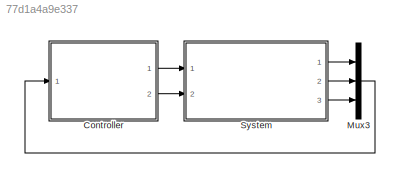
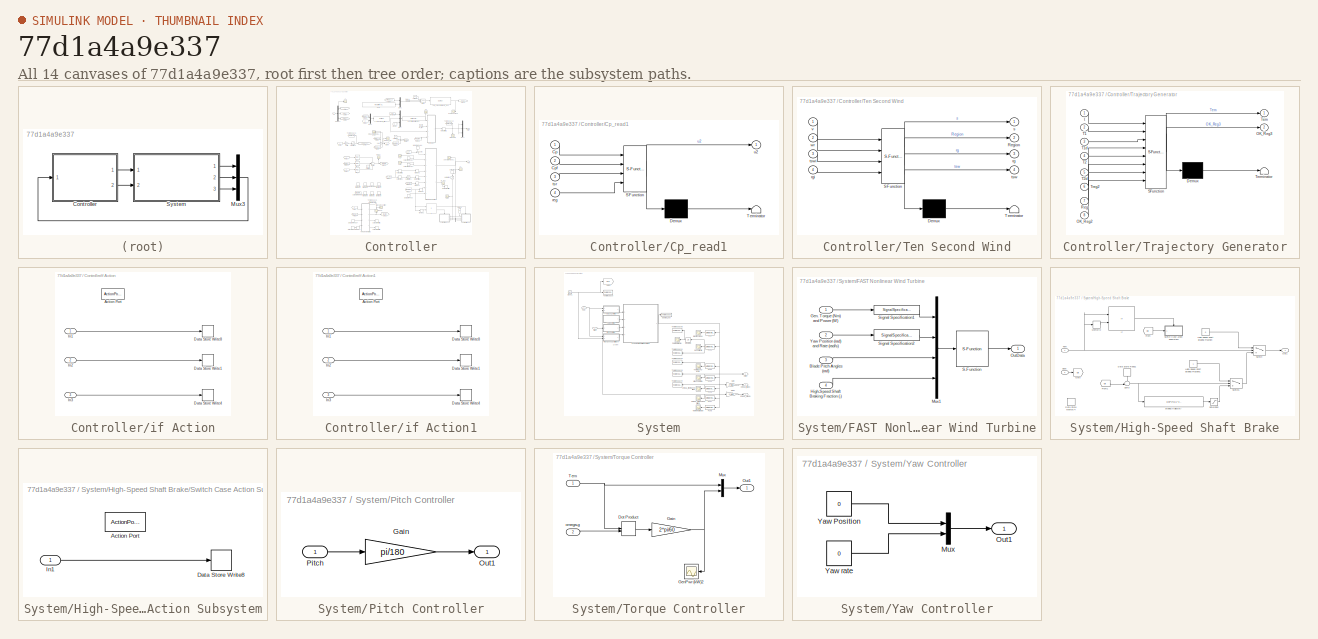
[diagram: thumbnail index - all 14 canvases of the model, root first then tree order]
MODEL slx_77d1a4a9e337
KIND model
CONFIG AbsTol = auto
CONFIG FixedStep = 0.01
CONFIG MaxStep = DT
CONFIG MinStep = auto
CONFIG RelTol = 1e-3
CONFIG SampleTimeConstraint = Unconstrained
CONFIG Solver = VariableStepAuto
CONFIG SolverMode = Auto
CONFIG SolverName = VariableStepAuto
CONFIG StartTime = 0.0
CONFIG StopTime = 101
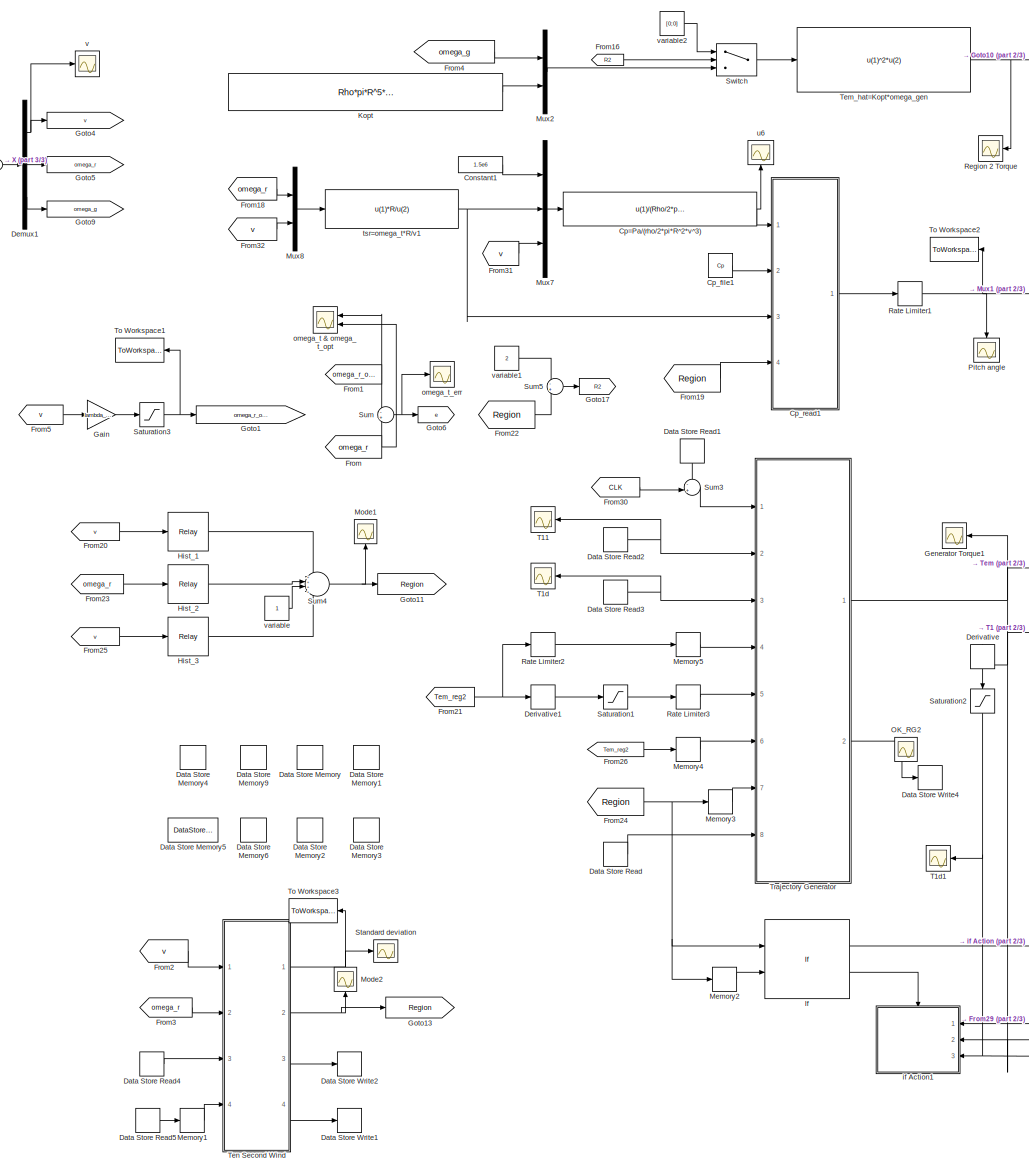
[diagram: Controller - part 1/3, most of the canvas]
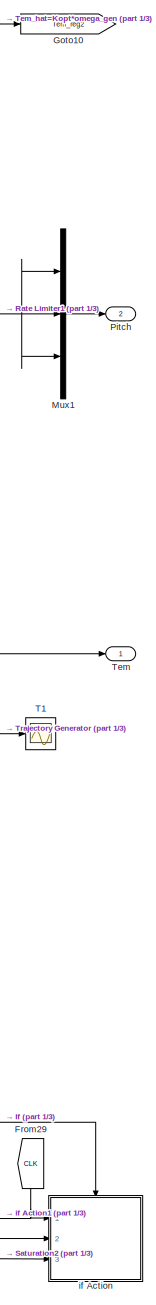
[diagram: Controller - part 2/3, right side, full height]
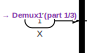
[diagram: Controller - part 3/3, top left region]
BLOCK [SubSystem] Controller
  Ports = [1, 2]
  RequestExecContextInheritance = off
  Variant = off
BLOCK [Constant] Controller/Constant1
  Value = 1.5e6
BLOCK [Fcn] Controller/Cp=Pa//(rho//2*pi*R^2*v^3)
  Expr = u(1)/(Rho/2*pi*R^2*u(3)^3)
BLOCK [Constant] Controller/Cp_file1
  Value = Cp
BLOCK [SubSystem] Controller/Cp_read1
  ErrorFcn = Stateflow.Translate.translate
  PermitHierarchicalResolution = ExplicitOnly
  Ports = [4, 1]
  RequestExecContextInheritance = off
  SFBlockType = MATLAB Function
  TreatAsAtomicUnit = on
  Variant = off
BLOCK [Demux] Controller/Cp_read1/ Demux 
  Outputs = 1
  Ports = [1, 1]
BLOCK [S-Function] Controller/Cp_read1/ SFunction 
  EnableBusSupport = on
  FunctionName = sf_sfun
  PortCounts = [4 2]
  Ports = [4, 2]
  SFunctionDeploymentMode = off
  Tag = Stateflow S-Function Closedloop 2
BLOCK [Terminator] Controller/Cp_read1/ Terminator 
BLOCK [Inport] Controller/Cp_read1/Cp
  IconDisplay = Port number
BLOCK [Inport] Controller/Cp_read1/Cpf
  IconDisplay = Port number
  Port = 2
BLOCK [Inport] Controller/Cp_read1/reg
  IconDisplay = Port number
  Port = 4
BLOCK [Inport] Controller/Cp_read1/tsr
  IconDisplay = Port number
  Port = 3
BLOCK [Outport] Controller/Cp_read1/u2
  IconDisplay = Port number
BLOCK [DataStoreMemory] Controller/Data Store Memory
  DataStoreName = T1
BLOCK [DataStoreMemory] Controller/Data Store Memory1
  DataStoreName = Rg2
  InitialValue = 1
BLOCK [DataStoreMemory] Controller/Data Store Memory2
  DataStoreName = T2
BLOCK [DataStoreMemory] Controller/Data Store Memory3
  DataStoreName = T2d
BLOCK [DataStoreMemory] Controller/Data Store Memory4
  DataStoreName = Clk
BLOCK [DataStoreMemory] Controller/Data Store Memory5
  DataStoreName = TSW
  InitialValue = zeros(1,500)
BLOCK [DataStoreMemory] Controller/Data Store Memory6
  DataStoreName = RG
  InitialValue = [0 0 0]
  OutDataTypeStr = double
BLOCK [DataStoreMemory] Controller/Data Store Memory9
  DataStoreName = T1d
BLOCK [DataStoreRead] Controller/Data Store Read
  DataStoreName = Rg2
  Ports = [0, 1]
  SampleTime = 0
BLOCK [DataStoreRead] Controller/Data Store Read1
  DataStoreName = Clk
  Ports = [0, 1]
  SampleTime = 0
BLOCK [DataStoreRead] Controller/Data Store Read2
  DataStoreName = T1
  Ports = [0, 1]
  SampleTime = 0
BLOCK [DataStoreRead] Controller/Data Store Read3
  DataStoreName = T1d
  Ports = [0, 1]
  SampleTime = 0
BLOCK [DataStoreRead] Controller/Data Store Read4
  DataStoreName = TSW
  Ports = [0, 1]
BLOCK [DataStoreRead] Controller/Data Store Read5
  DataStoreName = RG
  Ports = [0, 1]
BLOCK [DataStoreWrite] Controller/Data Store Write1
  DataStoreName = TSW
  Ports = [1]
BLOCK [DataStoreWrite] Controller/Data Store Write2
  Commented = on
  DataStoreName = RG
  Ports = [1]
BLOCK [DataStoreWrite] Controller/Data Store Write4
  DataStoreName = Rg2
  Ports = [1]
BLOCK [Demux] Controller/Demux1
  DisplayOption = bar
  Outputs = 3
  Ports = [1, 3]
BLOCK [Derivative] Controller/Derivative
  CoefficientInTFapproximation = 10
BLOCK [Derivative] Controller/Derivative1
  CoefficientInTFapproximation = 50
BLOCK [From] Controller/From
  GotoTag = omega_r
BLOCK [From] Controller/From1
  GotoTag = omega_r_opt
BLOCK [From] Controller/From16
  GotoTag = R2
BLOCK [From] Controller/From18
  GotoTag = omega_r
BLOCK [From] Controller/From19
  GotoTag = Region
BLOCK [From] Controller/From2
  GotoTag = v
BLOCK [From] Controller/From20
  GotoTag = v
BLOCK [From] Controller/From21
  GotoTag = Tem_reg2
BLOCK [From] Controller/From22
  GotoTag = Region
BLOCK [From] Controller/From23
  GotoTag = omega_r
BLOCK [From] Controller/From24
  GotoTag = Region
BLOCK [From] Controller/From25
  GotoTag = v
BLOCK [From] Controller/From26
  GotoTag = Tem_reg2
BLOCK [From] Controller/From29
  GotoTag = CLK
  TagVisibility = global
BLOCK [From] Controller/From3
  GotoTag = omega_r
BLOCK [From] Controller/From30
  GotoTag = CLK
  TagVisibility = global
BLOCK [From] Controller/From31
  GotoTag = v
BLOCK [From] Controller/From32
  GotoTag = v
BLOCK [From] Controller/From4
  GotoTag = omega_g
BLOCK [From] Controller/From5
  GotoTag = v
BLOCK [Gain] Controller/Gain
  Gain = lambda_opt/R*60/2/pi
  OutDataTypeStr = Inherit: Inherit via internal rule
  ParamDataTypeStr = Inherit: Inherit via internal rule
  SaturateOnIntegerOverflow = off
BLOCK [Scope] Controller/Generator Torque1
  Ports = [1]
  ScopeSpecificationString = Simulink.scopes.TimeScopeBlockCfg('CurrentConfiguration', extmgr.ConfigurationSet(extmgr.Configuration('Core','General UI',true,'FigureColor',[1 1 1]),extmgr.Configuration('Core','Source UI',true),extmgr.Configuration('Sources','WiredSimulink',true,'DataLoggingSaveFormat','StructureWithTime','DataLoggingDecimation','1','DataLoggingDecimateData',true,'DataLoggingVariableName','ScopeData1'),extmgr.C...<+2225ch>
BLOCK [Goto] Controller/Goto1
  GotoTag = omega_r_opt
BLOCK [Goto] Controller/Goto10
  GotoTag = Tem_reg2
BLOCK [Goto] Controller/Goto11
  GotoTag = Region
BLOCK [Goto] Controller/Goto13
  Commented = on
  GotoTag = Region
BLOCK [Goto] Controller/Goto17
  GotoTag = R2
BLOCK [Goto] Controller/Goto4
  GotoTag = v
BLOCK [Goto] Controller/Goto5
  GotoTag = omega_r
BLOCK [Goto] Controller/Goto6
  GotoTag = e
BLOCK [Goto] Controller/Goto9
  GotoTag = omega_g
BLOCK [Relay] Controller/Hist_1
  InputProcessing = Elements as channels (sample based)
  OffSwitchValue = 2.9
  OnSwitchValue = 3.3
BLOCK [Relay] Controller/Hist_2
  InputProcessing = Elements as channels (sample based)
  OffSwitchValue = 1.8
  OnSwitchValue = 1.9
BLOCK [Relay] Controller/Hist_3
  InputProcessing = Elements as channels (sample based)
  OffSwitchValue = 24.8
  OnSwitchValue = 25
BLOCK [If] Controller/If
  ElseIfExpressions = (u1==2)
  IfExpression = (u1~=u2)
  NumInputs = 2
  Ports = [2, 2]
  ShowElse = off
BLOCK [Constant] Controller/Kopt 
  Value = Rho*pi*R^5*Cp_opt/(2*ng^3*lambda_opt^3)
BLOCK [Memory] Controller/Memory1
BLOCK [Memory] Controller/Memory2
BLOCK [Memory] Controller/Memory3
  X0 = 2
BLOCK [Memory] Controller/Memory4
BLOCK [Memory] Controller/Memory5
BLOCK [Scope] Controller/Mode1
  Ports = [1]
  ScopeSpecificationString = Simulink.scopes.TimeScopeBlockCfg('CurrentConfiguration', extmgr.ConfigurationSet(extmgr.Configuration('Core','General UI',true),extmgr.Configuration('Core','Source UI',true),extmgr.Configuration('Sources','WiredSimulink',true,'DataLoggingVariableName','ScopeData2','DataLoggingSaveFormat','Array','DataLoggingDecimation','1','DataLoggingDecimateData',true),extmgr.Configuration('Visuals','Time Domai...<+1776ch>
BLOCK [Scope] Controller/Mode2
  Commented = on
  Ports = [1]
  ScopeSpecificationString = Simulink.scopes.TimeScopeBlockCfg('CurrentConfiguration', extmgr.ConfigurationSet(extmgr.Configuration('Core','General UI',true),extmgr.Configuration('Core','Source UI',true),extmgr.Configuration('Sources','WiredSimulink',true,'DataLoggingVariableName','ScopeData1'),extmgr.Configuration('Visuals','Time Domain',true,'SerializedDisplays',{struct('MinYLimReal','1.00000','MaxYLimReal','3.00000','YLabe...<+1404ch>
BLOCK [Mux] Controller/Mux1
  DisplayOption = bar
  Inputs = 3
  Ports = [3, 1]
BLOCK [Mux] Controller/Mux2
  DisplayOption = bar
  Inputs = 2
  Ports = [2, 1]
BLOCK [Mux] Controller/Mux7
  DisplayOption = bar
  Inputs = 3
  Ports = [3, 1]
BLOCK [Mux] Controller/Mux8
  DisplayOption = bar
  Inputs = 2
  Ports = [2, 1]
BLOCK [Scope] Controller/OK_RG2
  Ports = [1]
  ScopeSpecificationString = Simulink.scopes.TimeScopeBlockCfg('CurrentConfiguration', extmgr.ConfigurationSet(extmgr.Configuration('Core','General UI',true),extmgr.Configuration('Core','Source UI',true),extmgr.Configuration('Sources','WiredSimulink',true,'DataLoggingVariableName','ScopeData3','DataLoggingSaveFormat','Array','DataLoggingDecimation','1','DataLoggingDecimateData',true),extmgr.Configuration('Visuals','Time Domai...<+1735ch>
BLOCK [Outport] Controller/Pitch
  IconDisplay = Port number
  Port = 2
BLOCK [Scope] Controller/Pitch angle
  Ports = [1]
  ScopeSpecificationString = Simulink.scopes.TimeScopeBlockCfg('CurrentConfiguration', extmgr.ConfigurationSet(extmgr.Configuration('Core','General UI',true),extmgr.Configuration('Core','Source UI',true),extmgr.Configuration('Sources','WiredSimulink',true,'DataLoggingVariableName','ScopeData4','DataLoggingSaveFormat','Array','DataLoggingDecimation','1','DataLoggingDecimateData',true),extmgr.Configuration('Visuals','Time Domai...<+1521ch>
BLOCK [RateLimiter] Controller/Rate Limiter1
  FallingSlewLimit = -5
  RisingSlewLimit = 5
  SampleTimeMode = inherited
BLOCK [RateLimiter] Controller/Rate Limiter2
  FallingSlewLimit = -50
  RisingSlewLimit = 50
  SampleTimeMode = inherited
BLOCK [RateLimiter] Controller/Rate Limiter3
  FallingSlewLimit = -50
  RisingSlewLimit = 50
  SampleTimeMode = inherited
BLOCK [Scope] Controller/Region 2 Torque
  Ports = [1]
  ScopeSpecificationString = Simulink.scopes.TimeScopeBlockCfg('CurrentConfiguration', extmgr.ConfigurationSet(extmgr.Configuration('Core','General UI',true,'FigureColor',[1 1 1]),extmgr.Configuration('Core','Source UI',true),extmgr.Configuration('Sources','WiredSimulink',true,'DataLoggingSaveFormat','StructureWithTime','DataLoggingDecimation','1','DataLoggingDecimateData',true,'DataLoggingVariableName','ScopeData11'),extmgr....<+1876ch>
BLOCK [Saturate] Controller/Saturation1
  InputPortMap = u0
  LinearizeAsGain = off
  LowerLimit = -1000
  Ports = [1, 1]
  UpperLimit = 1000
  ZeroCross = off
BLOCK [Saturate] Controller/Saturation2
  InputPortMap = u0
  LowerLimit = -500
  Ports = [1, 1]
  UpperLimit = 500
  ZeroCross = off
BLOCK [Saturate] Controller/Saturation3
  InputPortMap = u0
  LowerLimit = 0
  Ports = [1, 1]
  UpperLimit = 20.5
  ZeroCross = off
BLOCK [Scope] Controller/Standard deviation
  Ports = [1]
  ScopeSpecificationString = Simulink.scopes.TimeScopeBlockCfg('CurrentConfiguration', extmgr.ConfigurationSet(extmgr.Configuration('Core','General UI',true),extmgr.Configuration('Core','Source UI',true),extmgr.Configuration('Sources','WiredSimulink',true,'DataLoggingVariableName','ScopeData2'),extmgr.Configuration('Visuals','Time Domain',true,'SerializedDisplays',{struct('MinYLimReal','-0.68215','MaxYLimReal','6.26857','YLab...<+1724ch>
BLOCK [Sum] Controller/Sum
  IconShape = round
  InputSameDT = off
  Inputs = -+
  OutDataTypeStr = Inherit: Inherit via internal rule
  Ports = [2, 1]
  SaturateOnIntegerOverflow = off
BLOCK [Sum] Controller/Sum3
  IconShape = round
  InputSameDT = off
  Inputs = -+|
  OutDataTypeStr = Inherit: Inherit via internal rule
  Ports = [2, 1]
  SaturateOnIntegerOverflow = off
BLOCK [Sum] Controller/Sum4
  IconShape = round
  InputSameDT = off
  Inputs = ++++
  OutDataTypeStr = Inherit: Inherit via internal rule
  Ports = [4, 1]
  SaturateOnIntegerOverflow = off
BLOCK [Sum] Controller/Sum5
  IconShape = round
  InputSameDT = off
  Inputs = -+
  OutDataTypeStr = Inherit: Inherit via internal rule
  Ports = [2, 1]
  SaturateOnIntegerOverflow = off
BLOCK [Switch] Controller/Switch
  Criteria = u2 ~= 0
  InputSameDT = off
  SaturateOnIntegerOverflow = off
  Threshold = 2
BLOCK [Scope] Controller/T1
  Ports = [1]
  ScopeSpecificationString = C++SS(StrPVP('SaveName','ScopeData5'),StrPVP('LimitDataPoints','on'),StrPVP('DataFormat','Array'),StrPVP('Decimation','1'),StrPVP('BlockParamSampleInput','off'))
BLOCK [Scope] Controller/T11
  Ports = [1]
  ScopeSpecificationString = C++SS(StrPVP('SaveName','ScopeData6'),StrPVP('LimitDataPoints','on'),StrPVP('DataFormat','Array'),StrPVP('Decimation','1'),StrPVP('BlockParamSampleInput','off'))
BLOCK [Scope] Controller/T1d
  Ports = [1]
  ScopeSpecificationString = C++SS(StrPVP('SaveName','ScopeData7'),StrPVP('LimitDataPoints','on'),StrPVP('DataFormat','Array'),StrPVP('Decimation','1'),StrPVP('BlockParamSampleInput','off'))
BLOCK [Scope] Controller/T1d1
  Ports = [1]
  ScopeSpecificationString = C++SS(StrPVP('SaveName','ScopeData8'),StrPVP('LimitDataPoints','on'),StrPVP('DataFormat','Array'),StrPVP('Decimation','1'),StrPVP('BlockParamSampleInput','off'))
BLOCK [Outport] Controller/Tem 
  IconDisplay = Port number
BLOCK [Fcn] Controller/Tem_hat=Kopt*omega_gen
  Expr = u(1)^2*u(2)
BLOCK [SubSystem] Controller/Ten Second Wind
  ErrorFcn = Stateflow.Translate.translate
  PermitHierarchicalResolution = ExplicitOnly
  Ports = [4, 4]
  RequestExecContextInheritance = off
  SFBlockType = MATLAB Function
  TreatAsAtomicUnit = on
  Variant = off
BLOCK [Demux] Controller/Ten Second Wind/ Demux 
  Outputs = 1
  Ports = [1, 1]
BLOCK [S-Function] Controller/Ten Second Wind/ SFunction 
  EnableBusSupport = on
  FunctionName = sf_sfun
  PortCounts = [4 5]
  Ports = [4, 5]
  SFunctionDeploymentMode = off
  Tag = Stateflow S-Function Closedloop 3
BLOCK [Terminator] Controller/Ten Second Wind/ Terminator 
BLOCK [Outport] Controller/Ten Second Wind/Region
  IconDisplay = Port number
  Port = 2
BLOCK [Outport] Controller/Ten Second Wind/rg
  IconDisplay = Port number
  Port = 3
BLOCK [Inport] Controller/Ten Second Wind/rgi
  IconDisplay = Port number
  Port = 4
BLOCK [Outport] Controller/Ten Second Wind/s
  IconDisplay = Port number
BLOCK [Outport] Controller/Ten Second Wind/tsw
  IconDisplay = Port number
  Port = 4
BLOCK [Inport] Controller/Ten Second Wind/tswi
  IconDisplay = Port number
  Port = 3
BLOCK [Inport] Controller/Ten Second Wind/v
  IconDisplay = Port number
BLOCK [Inport] Controller/Ten Second Wind/wr
  IconDisplay = Port number
  Port = 2
BLOCK [ToWorkspace] Controller/To Workspace1
  MaxDataPoints = inf
  Ports = [1]
  SampleTime = -1
  SaveFormat = Timeseries
  VariableName = Omega_max
BLOCK [ToWorkspace] Controller/To Workspace2
  MaxDataPoints = inf
  Ports = [1]
  SampleTime = -1
  SaveFormat = Timeseries
  VariableName = Beta
BLOCK [ToWorkspace] Controller/To Workspace3
  MaxDataPoints = inf
  Ports = [1]
  SampleTime = -1
  SaveFormat = Timeseries
  VariableName = SD
BLOCK [SubSystem] Controller/Trajectory Generator
  ErrorFcn = Stateflow.Translate.translate
  PermitHierarchicalResolution = ExplicitOnly
  Ports = [8, 2]
  RequestExecContextInheritance = off
  SFBlockType = MATLAB Function
  TreatAsAtomicUnit = on
  Variant = off
BLOCK [Demux] Controller/Trajectory Generator/ Demux 
  Outputs = 1
  Ports = [1, 1]
BLOCK [S-Function] Controller/Trajectory Generator/ SFunction 
  EnableBusSupport = on
  FunctionName = sf_sfun
  PortCounts = [8 3]
  Ports = [8, 3]
  SFunctionDeploymentMode = off
  Tag = Stateflow S-Function Closedloop 4
BLOCK [Terminator] Controller/Trajectory Generator/ Terminator 
BLOCK [Inport] Controller/Trajectory Generator/OK_Reg2
  IconDisplay = Port number
  Port = 8
BLOCK [Outport] Controller/Trajectory Generator/OK_Reg3
  IconDisplay = Port number
  Port = 2
BLOCK [Inport] Controller/Trajectory Generator/Reg
  IconDisplay = Port number
  Port = 7
BLOCK [Inport] Controller/Trajectory Generator/T1
  IconDisplay = Port number
  Port = 2
BLOCK [Inport] Controller/Trajectory Generator/T1d
  IconDisplay = Port number
  Port = 3
BLOCK [Inport] Controller/Trajectory Generator/T2
  IconDisplay = Port number
  Port = 4
BLOCK [Inport] Controller/Trajectory Generator/T2d
  IconDisplay = Port number
  Port = 5
BLOCK [Outport] Controller/Trajectory Generator/Tem
  IconDisplay = Port number
BLOCK [Inport] Controller/Trajectory Generator/Treg2
  IconDisplay = Port number
  Port = 6
BLOCK [Inport] Controller/Trajectory Generator/t
  IconDisplay = Port number
BLOCK [Inport] Controller/X
  IconDisplay = Port number
BLOCK [SubSystem] Controller/if Action
  Ports = [3, 0, 0, 0, 0, 0, 0, 1]
  RequestExecContextInheritance = off
  TreatAsAtomicUnit = on
  Variant = off
BLOCK [ActionPort] Controller/if Action/Action Port
  ActionType = then
BLOCK [DataStoreWrite] Controller/if Action/Data Store Write1
  DataStoreName = T1
  Ports = [1]
BLOCK [DataStoreWrite] Controller/if Action/Data Store Write4
  DataStoreName = T1d
  Ports = [1]
BLOCK [DataStoreWrite] Controller/if Action/Data Store Write8
  DataStoreName = Clk
  Ports = [1]
BLOCK [Inport] Controller/if Action/In1
  IconDisplay = Port number
BLOCK [Inport] Controller/if Action/In2
  IconDisplay = Port number
  Port = 2
BLOCK [Inport] Controller/if Action/In3
  IconDisplay = Port number
  Port = 3
BLOCK [SubSystem] Controller/if Action1
  Ports = [3, 0, 0, 0, 0, 0, 0, 1]
  RequestExecContextInheritance = off
  TreatAsAtomicUnit = on
  Variant = off
BLOCK [ActionPort] Controller/if Action1/Action Port
  ActionType = elseif
BLOCK [DataStoreWrite] Controller/if Action1/Data Store Write1
  DataStoreName = T1
  Ports = [1]
BLOCK [DataStoreWrite] Controller/if Action1/Data Store Write4
  DataStoreName = T1d
  Ports = [1]
BLOCK [DataStoreWrite] Controller/if Action1/Data Store Write8
  DataStoreName = Clk
  Ports = [1]
BLOCK [Inport] Controller/if Action1/In1
  IconDisplay = Port number
BLOCK [Inport] Controller/if Action1/In2
  IconDisplay = Port number
  Port = 2
BLOCK [Inport] Controller/if Action1/In3
  IconDisplay = Port number
  Port = 3
BLOCK [Scope] Controller/omega_t & omega_t_opt
  NumInputPorts = 2
  Ports = [2]
  ScopeSpecificationString = Simulink.scopes.TimeScopeBlockCfg('CurrentConfiguration', extmgr.ConfigurationSet(extmgr.Configuration('Core','General UI',true,'FigureColor',[1 1 1]),extmgr.Configuration('Core','Source UI',true),extmgr.Configuration('Sources','WiredSimulink',true,'DataLoggingVariableName','ScopeData2','DataLoggingSaveFormat','Array','DataLoggingDecimation','1','DataLoggingDecimateData',true),extmgr.Configuration...<+1735ch>
BLOCK [Scope] Controller/omega_t_err
  Ports = [1]
  ScopeSpecificationString = Simulink.scopes.TimeScopeBlockCfg('CurrentConfiguration', extmgr.ConfigurationSet(extmgr.Configuration('Core','General UI',true,'FigureColor',[1 1 1]),extmgr.Configuration('Core','Source UI',true),extmgr.Configuration('Sources','WiredSimulink',true,'DataLoggingSaveFormat','StructureWithTime','DataLoggingDecimation','1','DataLoggingDecimateData',true,'DataLoggingVariableName','ScopeData3'),extmgr.C...<+2094ch>
BLOCK [Fcn] Controller/tsr=omega_t*R//v1
  Expr = u(1)*R/u(2)
BLOCK [Scope] Controller/u6
  Ports = [1]
  ScopeSpecificationString = C++SS(StrPVP('SaveName','ScopeData11'),StrPVP('LimitDataPoints','on'),StrPVP('DataFormat','Array'),StrPVP('Decimation','1'),StrPVP('BlockParamSampleInput','off'))
BLOCK [Scope] Controller/v
  Ports = [1]
  ScopeSpecificationString = Simulink.scopes.TimeScopeBlockCfg('CurrentConfiguration', extmgr.ConfigurationSet(extmgr.Configuration('Core','General UI',true,'FigureColor',[1 1 1]),extmgr.Configuration('Core','Source UI',true),extmgr.Configuration('Sources','WiredSimulink',true,'DataLoggingSaveFormat','StructureWithTime','DataLoggingDecimation','1','DataLoggingDecimateData',true,'DataLoggingVariableName','ScopeData2'),extmgr.C...<+2089ch>
BLOCK [Constant] Controller/variable
BLOCK [Constant] Controller/variable1
  Value = 2
BLOCK [Constant] Controller/variable2
  Value = [0;0]
BLOCK [Mux] Mux3
  DisplayOption = bar
  Inputs = 3
  Ports = [3, 1]
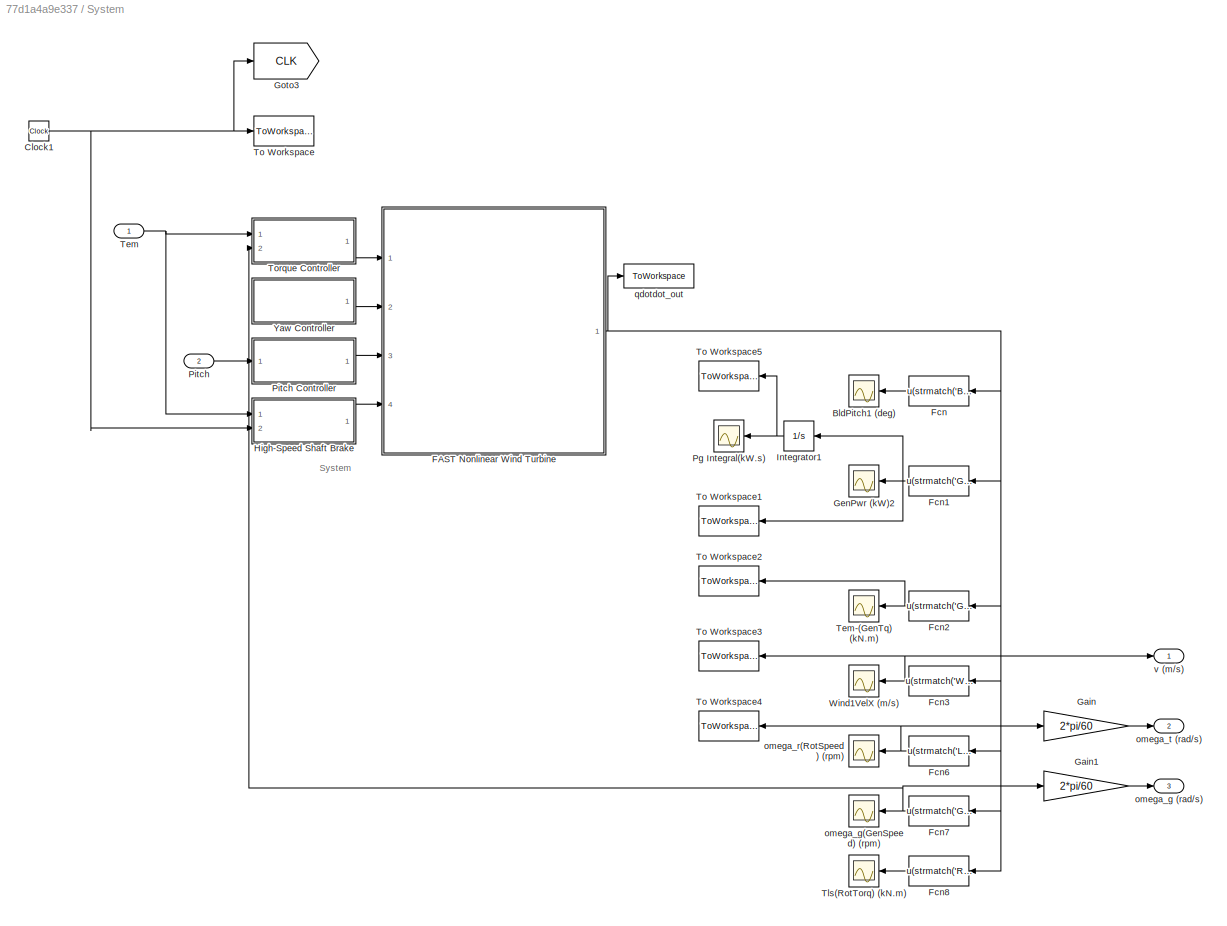
BLOCK [SubSystem] System
  Ports = [2, 3]
  RequestExecContextInheritance = off
  Variant = off
BLOCK [Scope] System/BldPitch1 (deg)
  Ports = [1]
  ScopeSpecificationString = C++SS(StrPVP('SaveName','ScopeData1'),StrPVP('LimitDataPoints','on'),StrPVP('DataFormat','Array'),StrPVP('Decimation','1'),StrPVP('BlockParamSampleInput','off'))
BLOCK [Clock] System/Clock1
BLOCK [SubSystem] System/FAST Nonlinear Wind Turbine
  Ports = [4, 1]
  RequestExecContextInheritance = off
  Variant = off
BLOCK [Inport] System/FAST Nonlinear Wind Turbine/Blade Pitch Angles (rad)
  IconDisplay = Port number
  Port = 3
BLOCK [Inport] System/FAST Nonlinear Wind Turbine/Gen. Torque (Nm) and Power (W)
  IconDisplay = Port number
BLOCK [Inport] System/FAST Nonlinear Wind Turbine/High-Speed Shaft Braking Fraction (-)
  IconDisplay = Port number
  Port = 4
BLOCK [Mux] System/FAST Nonlinear Wind Turbine/Mux1
  DisplayOption = bar
  Ports = [4, 1]
BLOCK [Outport] System/FAST Nonlinear Wind Turbine/OutData
  IconDisplay = Port number
BLOCK [S-Function] System/FAST Nonlinear Wind Turbine/S-Function
  EnableBusSupport = off
  FunctionName = FAST_SFunc
  Parameters = FAST_InputFileName, TMax, 0
  Ports = [1, 1]
  SFunctionDeploymentMode = off
BLOCK [SignalSpecification] System/FAST Nonlinear Wind Turbine/Signal Specification1
  Dimensions = 2
  OutDataTypeStr = double
  SignalType = real
BLOCK [SignalSpecification] System/FAST Nonlinear Wind Turbine/Signal Specification2
  Dimensions = 2
  OutDataTypeStr = double
  SignalType = real
BLOCK [Inport] System/FAST Nonlinear Wind Turbine/Yaw Position (rad) and Rate (rad//s)
  IconDisplay = Port number
  Port = 2
BLOCK [Fcn] System/Fcn
  Expr = u(strmatch('BldPitch1',OutList))
BLOCK [Fcn] System/Fcn1
  Expr = u(strmatch('GenPwr',OutList))
BLOCK [Fcn] System/Fcn2
  Expr = u(strmatch('GenTq',OutList))
BLOCK [Fcn] System/Fcn3
  Expr = u(strmatch('Wind1VelX',OutList))
BLOCK [Fcn] System/Fcn6
  Expr = u(strmatch('LSSTipVxa',OutList))
BLOCK [Fcn] System/Fcn7
  Expr = u(strmatch('GenSpeed',OutList))
BLOCK [Fcn] System/Fcn8
  Expr = u(strmatch('RotTorq',OutList))
BLOCK [Gain] System/Gain
  Gain = 2*pi/60
  OutDataTypeStr = Inherit: Inherit via internal rule
  ParamDataTypeStr = Inherit: Inherit via internal rule
  SaturateOnIntegerOverflow = off
BLOCK [Gain] System/Gain1
  Gain = 2*pi/60
  OutDataTypeStr = Inherit: Inherit via internal rule
  ParamDataTypeStr = Inherit: Inherit via internal rule
  SaturateOnIntegerOverflow = off
BLOCK [Scope] System/GenPwr (kW)2
  Ports = [1]
  ScopeSpecificationString = Simulink.scopes.TimeScopeBlockCfg('CurrentConfiguration', extmgr.ConfigurationSet(extmgr.Configuration('Core','General UI',true),extmgr.Configuration('Core','Source UI',true),extmgr.Configuration('Sources','WiredSimulink',true,'DataLoggingVariableName','ScopeData2','DataLoggingSaveFormat','Array','DataLoggingDecimation','1','DataLoggingDecimateData',true),extmgr.Configuration('Visuals','Time Domai...<+1472ch>
BLOCK [Goto] System/Goto3
  GotoTag = CLK
  TagVisibility = global
BLOCK [SubSystem] System/High-Speed Shaft Brake
  Ports = [2, 1]
  RequestExecContextInheritance = off
  Variant = off
BLOCK [DataStoreMemory] System/High-Speed Shaft Brake/Data Store Memory4
  DataStoreName = Clk2
BLOCK [DataStoreRead] System/High-Speed Shaft Brake/Data Store Read1
  DataStoreName = Clk2
  Ports = [0, 1]
  SampleTime = 0
BLOCK [From] System/High-Speed Shaft Brake/From
  GotoTag = clk
BLOCK [From] System/High-Speed Shaft Brake/From1
  GotoTag = clk
BLOCK [Goto] System/High-Speed Shaft Brake/Goto
  GotoTag = clk
BLOCK [Constant] System/High-Speed Shaft Brake/High-Speed Shaft Braking Fraction
  Value = 0
BLOCK [Constant] System/High-Speed Shaft Brake/High-Speed Shaft Braking Fraction1
BLOCK [If] System/High-Speed Shaft Brake/If
  IfExpression = (u1==0 & u2~=0)
  NumInputs = 2
  Ports = [2, 1]
  ShowElse = off
BLOCK [Memory] System/High-Speed Shaft Brake/Memory2
BLOCK [Outport] System/High-Speed Shaft Brake/Out1
  IconDisplay = Port number
BLOCK [Saturate] System/High-Speed Shaft Brake/Saturation
  InputPortMap = u0
  LowerLimit = 0
  Ports = [1, 1]
  UpperLimit = 1
BLOCK [Sum] System/High-Speed Shaft Brake/Sum3
  IconShape = round
  InputSameDT = off
  Inputs = -+|
  OutDataTypeStr = Inherit: Inherit via internal rule
  Ports = [2, 1]
  SaturateOnIntegerOverflow = off
BLOCK [Switch] System/High-Speed Shaft Brake/Switch
  Criteria = u2 ~= 0
  InputSameDT = off
  SaturateOnIntegerOverflow = off
BLOCK [SubSystem] System/High-Speed Shaft Brake/Switch Case Action Subsystem
  Ports = [1, 0, 0, 0, 0, 0, 0, 1]
  RequestExecContextInheritance = off
  TreatAsAtomicUnit = on
  Variant = off
BLOCK [ActionPort] System/High-Speed Shaft Brake/Switch Case Action Subsystem/Action Port
  ActionType = then
BLOCK [DataStoreWrite] System/High-Speed Shaft Brake/Switch Case Action Subsystem/Data Store Write8
  DataStoreName = Clk2
  Ports = [1]
BLOCK [Inport] System/High-Speed Shaft Brake/Switch Case Action Subsystem/In1
  IconDisplay = Port number
BLOCK [Switch] System/High-Speed Shaft Brake/Switch1
  InputSameDT = off
  SaturateOnIntegerOverflow = off
  Threshold = BT
  ZeroCross = off
BLOCK [Inport] System/High-Speed Shaft Brake/Tem
  IconDisplay = Port number
BLOCK [Fcn] System/High-Speed Shaft Brake/braking trajectory
  Expr = 3/BT^2*u(1)^2+-2/BT^3*u(1)^3
BLOCK [Inport] System/High-Speed Shaft Brake/clock
  IconDisplay = Port number
  Port = 2
BLOCK [Integrator] System/Integrator1
  Ports = [1, 1]
BLOCK [Scope] System/Pg Integral(kW.s)
  Ports = [1]
  ScopeSpecificationString = Simulink.scopes.TimeScopeBlockCfg('CurrentConfiguration', extmgr.ConfigurationSet(extmgr.Configuration('Core','General UI',true),extmgr.Configuration('Core','Source UI',true),extmgr.Configuration('Sources','WiredSimulink',true,'DataLoggingVariableName','ScopeData3','DataLoggingLimitDataPoints',true,'DataLoggingSaveFormat','Array','DataLoggingDecimation','1','DataLoggingDecimateData',true),extmgr.C...<+1848ch>
BLOCK [Inport] System/Pitch
  IconDisplay = Port number
  Port = 2
BLOCK [SubSystem] System/Pitch Controller
  Ports = [1, 1]
  RequestExecContextInheritance = off
  Variant = off
BLOCK [Gain] System/Pitch Controller/Gain
  Gain = pi/180
  OutDataTypeStr = Inherit: Inherit via internal rule
  ParamDataTypeStr = Inherit: Inherit via internal rule
  SaturateOnIntegerOverflow = off
BLOCK [Outport] System/Pitch Controller/Out1
  IconDisplay = Port number
BLOCK [Inport] System/Pitch Controller/Pitch
  IconDisplay = Port number
BLOCK [Inport] System/Tem
  IconDisplay = Port number
BLOCK [Scope] System/Tem-(GenTq) (kN.m)
  Ports = [1]
  ScopeSpecificationString = C++SS(StrPVP('SaveName','ScopeData4'),StrPVP('LimitDataPoints','on'),StrPVP('DataFormat','Array'),StrPVP('Decimation','1'),StrPVP('BlockParamSampleInput','off'))
BLOCK [Scope] System/Tls(RotTorq) (kN.m)
  Ports = [1]
  ScopeSpecificationString = C++SS(StrPVP('SaveName','ScopeData5'),StrPVP('LimitDataPoints','on'),StrPVP('DataFormat','Array'),StrPVP('Decimation','1'),StrPVP('BlockParamSampleInput','off'))
BLOCK [ToWorkspace] System/To Workspace
  MaxDataPoints = inf
  Ports = [1]
  SampleTime = -1
  VariableName = Time
BLOCK [ToWorkspace] System/To Workspace1
  MaxDataPoints = inf
  Ports = [1]
  SampleTime = -1
  SaveFormat = Timeseries
  VariableName = Power
BLOCK [ToWorkspace] System/To Workspace2
  MaxDataPoints = inf
  Ports = [1]
  SampleTime = -1
  SaveFormat = Timeseries
  VariableName = GenTq
BLOCK [ToWorkspace] System/To Workspace3
  MaxDataPoints = inf
  Ports = [1]
  SampleTime = -1
  SaveFormat = Timeseries
  VariableName = Wind
BLOCK [ToWorkspace] System/To Workspace4
  MaxDataPoints = inf
  Ports = [1]
  SampleTime = -1
  SaveFormat = Timeseries
  VariableName = Omega_r
BLOCK [ToWorkspace] System/To Workspace5
  MaxDataPoints = inf
  Ports = [1]
  SampleTime = -1
  SaveFormat = Timeseries
  VariableName = Power_int
BLOCK [SubSystem] System/Torque Controller
  Ports = [2, 1]
  RequestExecContextInheritance = off
  Variant = off
BLOCK [DotProduct] System/Torque Controller/Dot Product
  OutDataTypeStr = Inherit: Inherit via internal rule
BLOCK [Gain] System/Torque Controller/Gain
  Gain = 2*pi/60
  OutDataTypeStr = Inherit: Inherit via internal rule
  ParamDataTypeStr = Inherit: Inherit via internal rule
  SaturateOnIntegerOverflow = off
BLOCK [Scope] System/Torque Controller/GenPwr (kW)2
  Ports = [1]
  ScopeSpecificationString = Simulink.scopes.TimeScopeBlockCfg('CurrentConfiguration', extmgr.ConfigurationSet(extmgr.Configuration('Core','General UI',true,'FigureColor',[1 1 1]),extmgr.Configuration('Core','Source UI',true),extmgr.Configuration('Sources','WiredSimulink',true,'DataLoggingSaveFormat','StructureWithTime','DataLoggingDecimation','1','DataLoggingDecimateData',true,'DataLoggingVariableName','ScopeData1'),extmgr.C...<+1851ch>
BLOCK [Mux] System/Torque Controller/Mux
  DisplayOption = bar
  Inputs = 2
  Ports = [2, 1]
BLOCK [Outport] System/Torque Controller/Out1
  IconDisplay = Port number
BLOCK [Inport] System/Torque Controller/Tem
  IconDisplay = Port number
BLOCK [Inport] System/Torque Controller/omega-g
  IconDisplay = Port number
  Port = 2
BLOCK [Scope] System/Wind1VelX (m//s)
  Ports = [1]
  ScopeSpecificationString = Simulink.scopes.TimeScopeBlockCfg('CurrentConfiguration', extmgr.ConfigurationSet(extmgr.Configuration('Core','General UI',true),extmgr.Configuration('Core','Source UI',true),extmgr.Configuration('Sources','WiredSimulink',true,'DataLoggingVariableName','ScopeData6','DataLoggingSaveFormat','Array','DataLoggingDecimation','1','DataLoggingDecimateData',true),extmgr.Configuration('Visuals','Time Domai...<+1487ch>
BLOCK [SubSystem] System/Yaw Controller
  Ports = [0, 1]
  RequestExecContextInheritance = off
  Variant = off
BLOCK [Mux] System/Yaw Controller/Mux
  DisplayOption = bar
  Inputs = 2
  Ports = [2, 1]
BLOCK [Outport] System/Yaw Controller/Out1
  IconDisplay = Port number
BLOCK [Constant] System/Yaw Controller/Yaw Position
  Value = 0
BLOCK [Constant] System/Yaw Controller/Yaw rate
  Value = 0
BLOCK [Outport] System/omega_g (rad//s)
  IconDisplay = Port number
  Port = 3
BLOCK [Scope] System/omega_g(GenSpeed) (rpm)
  Ports = [1]
  ScopeSpecificationString = C++SS(StrPVP('SaveName','ScopeData7'),StrPVP('LimitDataPoints','on'),StrPVP('DataFormat','Array'),StrPVP('Decimation','1'),StrPVP('BlockParamSampleInput','off'))
BLOCK [Scope] System/omega_r(RotSpeed) (rpm)
  Ports = [1]
  ScopeSpecificationString = C++SS(StrPVP('SaveName','ScopeData8'),StrPVP('LimitDataPoints','on'),StrPVP('DataFormat','Array'),StrPVP('Decimation','1'),StrPVP('BlockParamSampleInput','off'))
BLOCK [Outport] System/omega_t (rad//s)
  IconDisplay = Port number
  Port = 2
BLOCK [ToWorkspace] System/qdotdot_out
  MaxDataPoints = inf
  Ports = [1]
  SampleTime = -1
  VariableName = OutData
BLOCK [Outport] System/v (m//s)
  IconDisplay = Port number
ANNOTATION System: System
LINE Controller/Constant1:1 -> Controller/Mux7:1
NET Controller/Cp=Pa//(rho//2*pi*R^2*v^3):1 -> Controller/Cp_read1:1, Controller/u6:1
LINE Controller/Cp_file1:1 -> Controller/Cp_read1:2
LINE Controller/Cp_read1:1 -> Controller/Rate Limiter1:1
LINE Controller/Data Store Read1:1 -> Controller/Sum3:1
NET Controller/Data Store Read2:1 -> Controller/T11:1, Controller/Trajectory Generator:2
NET Controller/Data Store Read3:1 -> Controller/T1d:1, Controller/Trajectory Generator:3
LINE Controller/Data Store Read4:1 -> Controller/Ten Second Wind:3
LINE Controller/Data Store Read5:1 -> Controller/Memory1:1
LINE Controller/Data Store Read:1 -> Controller/Trajectory Generator:8
NET Controller/Demux1:1 -> Controller/Goto4:1, Controller/v:1
LINE Controller/Demux1:2 -> Controller/Goto5:1
LINE Controller/Demux1:3 -> Controller/Goto9:1
LINE Controller/Derivative1:1 -> Controller/Saturation1:1
LINE Controller/Derivative:1 -> Controller/Saturation2:1
LINE Controller/From16:1 -> Controller/Switch:2
LINE Controller/From18:1 -> Controller/Mux8:1
LINE Controller/From19:1 -> Controller/Cp_read1:4
NET Controller/From1:1 -> Controller/Sum:1, Controller/omega_t & omega_t_opt:1
LINE Controller/From20:1 -> Controller/Hist_1:1
NET Controller/From21:1 -> Controller/Derivative1:1, Controller/Rate Limiter2:1
LINE Controller/From22:1 -> Controller/Sum5:2
LINE Controller/From23:1 -> Controller/Hist_2:1
NET Controller/From24:1 -> Controller/If:1, Controller/Memory2:1, Controller/Memory3:1
LINE Controller/From25:1 -> Controller/Hist_3:1
LINE Controller/From26:1 -> Controller/Memory4:1
NET Controller/From29:1 -> Controller/if Action1:1, Controller/if Action:1
LINE Controller/From2:1 -> Controller/Ten Second Wind:1
LINE Controller/From30:1 -> Controller/Sum3:2
LINE Controller/From31:1 -> Controller/Mux7:3
LINE Controller/From32:1 -> Controller/Mux8:2
LINE Controller/From3:1 -> Controller/Ten Second Wind:2
LINE Controller/From4:1 -> Controller/Mux2:1
LINE Controller/From5:1 -> Controller/Gain:1
NET Controller/From:1 -> Controller/Sum:2, Controller/omega_t & omega_t_opt:2
LINE Controller/Gain:1 -> Controller/Saturation3:1
LINE Controller/Hist_1:1 -> Controller/Sum4:1
LINE Controller/Hist_2:1 -> Controller/Sum4:2
LINE Controller/Hist_3:1 -> Controller/Sum4:4
LINE Controller/If:1 -> Controller/if Action:ifaction
LINE Controller/If:2 -> Controller/if Action1:ifaction
LINE Controller/Kopt :1 -> Controller/Mux2:2
LINE Controller/Memory1:1 -> Controller/Ten Second Wind:4
LINE Controller/Memory2:1 -> Controller/If:2
LINE Controller/Memory3:1 -> Controller/Trajectory Generator:7
LINE Controller/Memory4:1 -> Controller/Trajectory Generator:6
LINE Controller/Memory5:1 -> Controller/Trajectory Generator:4
LINE Controller/Mux1:1 -> Controller/Pitch:1
LINE Controller/Mux2:1 -> Controller/Switch:3
LINE Controller/Mux7:1 -> Controller/Cp=Pa//(rho//2*pi*R^2*v^3):1
LINE Controller/Mux8:1 -> Controller/tsr=omega_t*R//v1:1
NET Controller/Rate Limiter1:1 -> Controller/Mux1:1, Controller/Mux1:2, Controller/Mux1:3, Controller/Pitch angle:1, Controller/To Workspace2:1
LINE Controller/Rate Limiter2:1 -> Controller/Memory5:1
LINE Controller/Rate Limiter3:1 -> Controller/Trajectory Generator:5
LINE Controller/Saturation1:1 -> Controller/Rate Limiter3:1
NET Controller/Saturation2:1 -> Controller/T1d1:1, Controller/if Action1:3, Controller/if Action:3
NET Controller/Saturation3:1 -> Controller/Goto1:1, Controller/To Workspace1:1
LINE Controller/Sum3:1 -> Controller/Trajectory Generator:1
NET Controller/Sum4:1 -> Controller/Goto11:1, Controller/Mode1:1
LINE Controller/Sum5:1 -> Controller/Goto17:1
NET Controller/Sum:1 -> Controller/Goto6:1, Controller/omega_t_err:1
LINE Controller/Switch:1 -> Controller/Tem_hat=Kopt*omega_gen:1
NET Controller/Tem_hat=Kopt*omega_gen:1 -> Controller/Goto10:1, Controller/Region 2 Torque:1
NET Controller/Ten Second Wind:1 -> Controller/Standard deviation:1, Controller/To Workspace3:1
NET Controller/Ten Second Wind:2 -> Controller/Goto13:1, Controller/Mode2:1
LINE Controller/Ten Second Wind:3 -> Controller/Data Store Write2:1
LINE Controller/Ten Second Wind:4 -> Controller/Data Store Write1:1
NET Controller/Trajectory Generator:1 -> Controller/Derivative:1, Controller/Generator Torque1:1, Controller/T1:1, Controller/Tem :1, Controller/if Action1:2, Controller/if Action:2
NET Controller/Trajectory Generator:2 -> Controller/Data Store Write4:1, Controller/OK_RG2:1
LINE Controller/X:1 -> Controller/Demux1:1
LINE Controller/if Action/In1:1 -> Controller/if Action/Data Store Write8:1
LINE Controller/if Action/In2:1 -> Controller/if Action/Data Store Write1:1
LINE Controller/if Action/In3:1 -> Controller/if Action/Data Store Write4:1
LINE Controller/if Action1/In1:1 -> Controller/if Action1/Data Store Write8:1
LINE Controller/if Action1/In2:1 -> Controller/if Action1/Data Store Write1:1
LINE Controller/if Action1/In3:1 -> Controller/if Action1/Data Store Write4:1
NET Controller/tsr=omega_t*R//v1:1 -> Controller/Cp_read1:3, Controller/Mux7:2
LINE Controller/variable1:1 -> Controller/Sum5:1
LINE Controller/variable2:1 -> Controller/Switch:1
LINE Controller/variable:1 -> Controller/Sum4:3
LINE Controller:1 -> System:1
LINE Controller:2 -> System:2
LINE Mux3:1 -> Controller:1
NET System/Clock1:1 -> System/Goto3:1, System/High-Speed Shaft Brake:2, System/To Workspace:1
LINE System/FAST Nonlinear Wind Turbine/Blade Pitch Angles (rad):1 -> System/FAST Nonlinear Wind Turbine/Mux1:3
LINE System/FAST Nonlinear Wind Turbine/Gen. Torque (Nm) and Power (W):1 -> System/FAST Nonlinear Wind Turbine/Signal Specification1:1
LINE System/FAST Nonlinear Wind Turbine/High-Speed Shaft Braking Fraction (-):1 -> System/FAST Nonlinear Wind Turbine/Mux1:4
LINE System/FAST Nonlinear Wind Turbine/Mux1:1 -> System/FAST Nonlinear Wind Turbine/S-Function:1
LINE System/FAST Nonlinear Wind Turbine/S-Function:1 -> System/FAST Nonlinear Wind Turbine/OutData:1
LINE System/FAST Nonlinear Wind Turbine/Signal Specification1:1 -> System/FAST Nonlinear Wind Turbine/Mux1:1
LINE System/FAST Nonlinear Wind Turbine/Signal Specification2:1 -> System/FAST Nonlinear Wind Turbine/Mux1:2
LINE System/FAST Nonlinear Wind Turbine/Yaw Position (rad) and Rate (rad//s):1 -> System/FAST Nonlinear Wind Turbine/Signal Specification2:1
NET System/FAST Nonlinear Wind Turbine:1 -> System/Fcn1:1, System/Fcn2:1, System/Fcn3:1, System/Fcn6:1, System/Fcn7:1, System/Fcn8:1, System/Fcn:1, System/qdotdot_out:1
NET System/Fcn1:1 -> System/GenPwr (kW)2:1, System/Integrator1:1, System/To Workspace1:1
NET System/Fcn2:1 -> System/Tem-(GenTq) (kN.m):1, System/To Workspace2:1
NET System/Fcn3:1 -> System/To Workspace3:1, System/Wind1VelX (m//s):1, System/v (m//s):1
NET System/Fcn6:1 -> System/Gain:1, System/To Workspace4:1, System/omega_r(RotSpeed) (rpm):1
NET System/Fcn7:1 -> System/Gain1:1, System/Torque Controller:2, System/omega_g(GenSpeed) (rpm):1
LINE System/Fcn8:1 -> System/Tls(RotTorq) (kN.m):1
LINE System/Fcn:1 -> System/BldPitch1 (deg):1
LINE System/Gain1:1 -> System/omega_g (rad//s):1
LINE System/Gain:1 -> System/omega_t (rad//s):1
LINE System/High-Speed Shaft Brake/Data Store Read1:1 -> System/High-Speed Shaft Brake/Sum3:1
LINE System/High-Speed Shaft Brake/From1:1 -> System/High-Speed Shaft Brake/Sum3:2
LINE System/High-Speed Shaft Brake/From:1 -> System/High-Speed Shaft Brake/Switch Case Action Subsystem:1
LINE System/High-Speed Shaft Brake/High-Speed Shaft Braking Fraction1:1 -> System/High-Speed Shaft Brake/Switch1:1
LINE System/High-Speed Shaft Brake/High-Speed Shaft Braking Fraction:1 -> System/High-Speed Shaft Brake/Switch:1
LINE System/High-Speed Shaft Brake/If:1 -> System/High-Speed Shaft Brake/Switch Case Action Subsystem:ifaction
LINE System/High-Speed Shaft Brake/Memory2:1 -> System/High-Speed Shaft Brake/If:2
LINE System/High-Speed Shaft Brake/Saturation:1 -> System/High-Speed Shaft Brake/Switch1:3
NET System/High-Speed Shaft Brake/Sum3:1 -> System/High-Speed Shaft Brake/Switch1:2, System/High-Speed Shaft Brake/braking trajectory:1
LINE System/High-Speed Shaft Brake/Switch Case Action Subsystem/In1:1 -> System/High-Speed Shaft Brake/Switch Case Action Subsystem/Data Store Write8:1
LINE System/High-Speed Shaft Brake/Switch1:1 -> System/High-Speed Shaft Brake/Switch:3
LINE System/High-Speed Shaft Brake/Switch:1 -> System/High-Speed Shaft Brake/Out1:1
NET System/High-Speed Shaft Brake/Tem:1 -> System/High-Speed Shaft Brake/If:1, System/High-Speed Shaft Brake/Memory2:1, System/High-Speed Shaft Brake/Switch:2
LINE System/High-Speed Shaft Brake/braking trajectory:1 -> System/High-Speed Shaft Brake/Saturation:1
LINE System/High-Speed Shaft Brake/clock:1 -> System/High-Speed Shaft Brake/Goto:1
LINE System/High-Speed Shaft Brake:1 -> System/FAST Nonlinear Wind Turbine:4
NET System/Integrator1:1 -> System/Pg Integral(kW.s):1, System/To Workspace5:1
LINE System/Pitch Controller/Gain:1 -> System/Pitch Controller/Out1:1
LINE System/Pitch Controller/Pitch:1 -> System/Pitch Controller/Gain:1
LINE System/Pitch Controller:1 -> System/FAST Nonlinear Wind Turbine:3
LINE System/Pitch:1 -> System/Pitch Controller:1
NET System/Tem:1 -> System/High-Speed Shaft Brake:1, System/Torque Controller:1
LINE System/Torque Controller/Dot Product:1 -> System/Torque Controller/Gain:1
NET System/Torque Controller/Gain:1 -> System/Torque Controller/GenPwr (kW)2:1, System/Torque Controller/Mux:2
LINE System/Torque Controller/Mux:1 -> System/Torque Controller/Out1:1
NET System/Torque Controller/Tem:1 -> System/Torque Controller/Dot Product:1, System/Torque Controller/Mux:1
LINE System/Torque Controller/omega-g:1 -> System/Torque Controller/Dot Product:2
LINE System/Torque Controller:1 -> System/FAST Nonlinear Wind Turbine:1
LINE System/Yaw Controller/Mux:1 -> System/Yaw Controller/Out1:1
LINE System/Yaw Controller/Yaw Position:1 -> System/Yaw Controller/Mux:1
LINE System/Yaw Controller/Yaw rate:1 -> System/Yaw Controller/Mux:2
LINE System/Yaw Controller:1 -> System/FAST Nonlinear Wind Turbine:2
LINE System:1 -> Mux3:1
LINE System:2 -> Mux3:2
LINE System:3 -> Mux3:3
note: NET lines group one-source signal fan-out (src -> all destinations, sorted); 1:1 wires keep LINE
CHART Controller/Cp_read1 states=1 transitions=1
  STATE_LABEL 'eML_blk_kernel()'
  STATE_LABEL 'SCRIPT:\nfunction u2 = fcn(Cp,Cpf,tsr,reg)\n    tsr=floor(tsr*10+0.5);\n    beta=2;\n    if (Cp>0) && (Cp<0.4857) && (tsr<200) && (tsr>0)\n        i=90;\n        while (Cp>Cpf(i,tsr))\n            i=i-1;\n            if i==2 \n                break; \n            end\n        end\n        if (i>2)\n            p=(Cp-Cpf(i+1,tsr))/(Cpf(i,tsr)-Cpf(i+1,tsr));\n            beta=(i-p); \n        end\n    end\n    if (r...<+90ch>'
CHART Controller/Ten Second Wind states=1 transitions=1
  STATE_LABEL 'eML_blk_kernel()'
  STATE_LABEL 'SCRIPT:\nfunction [s,Region,rg,tsw] = fcn(v,wr,tswi,rgi)\n    \n    tsw=zeros(1,500);\n    tsw(1:499)=tswi(2:500);\n    tsw(500)=v;\n    s=sqrt(var(tsw));\n    rg=rgi;\n    if v>25\n        rg=[1;1;1];\n    elseif v<(25-2*s)\n        rg(3)=0;\n    end\n    if wr>(2)\n        rg(2)=1;\n    elseif wr<(2-2*s)\n        rg(2)=0;\n    end\n    if v>(3+2*s)\n        rg(1)=1;\n    elseif v<3\n        rg=[0;0;0];\n    end\n    \n...<+35ch>'
CHART Controller/Trajectory Generator states=1 transitions=1
  STATE_LABEL 'eML_blk_kernel()'
  STATE_LABEL 'SCRIPT:\nfunction [ Tem,OK_Reg3 ] = fcn1(t, T1, T1d, T2, T2d, Treg2, Reg, OK_Reg2)\nif (Reg~=2)\n    OK_Reg2=0;\n    T=3;              %transition time\n    T2=1.5e6/2/87.965;\n    if (Reg~=3); T2=0; end\n    T2d=0;            %desired T_dot\n    if (t>T) \n        Tem=T2;\n    else\n        %T up trajectory(cubic spline)---------\n        B1=T1;\n        B2=T1d;\n        B3=3*(T2-T1)/T^2-2*T1d/T-T2d/T;\n       ...<+481ch>'
